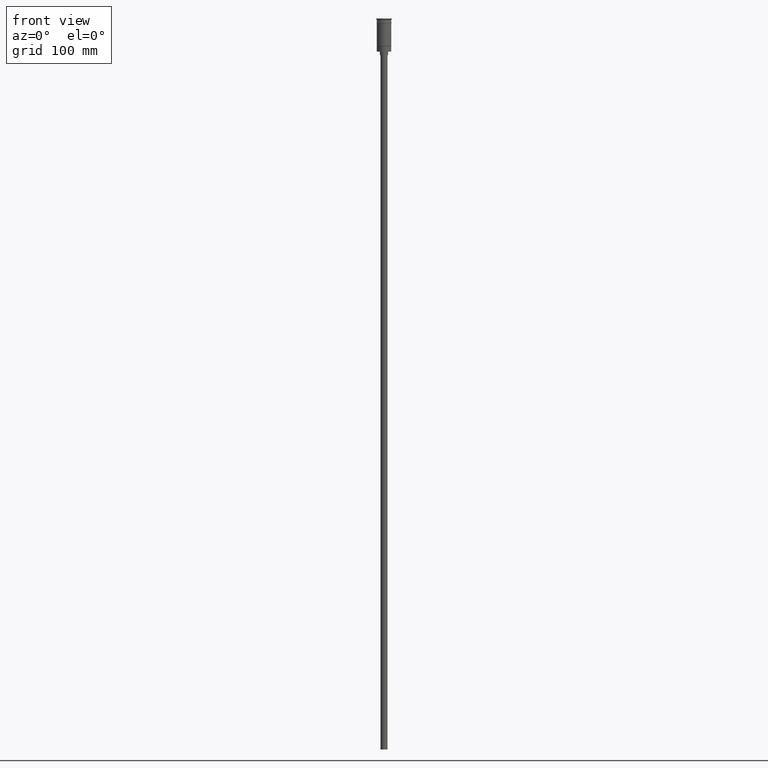
[diagram: clean part render]
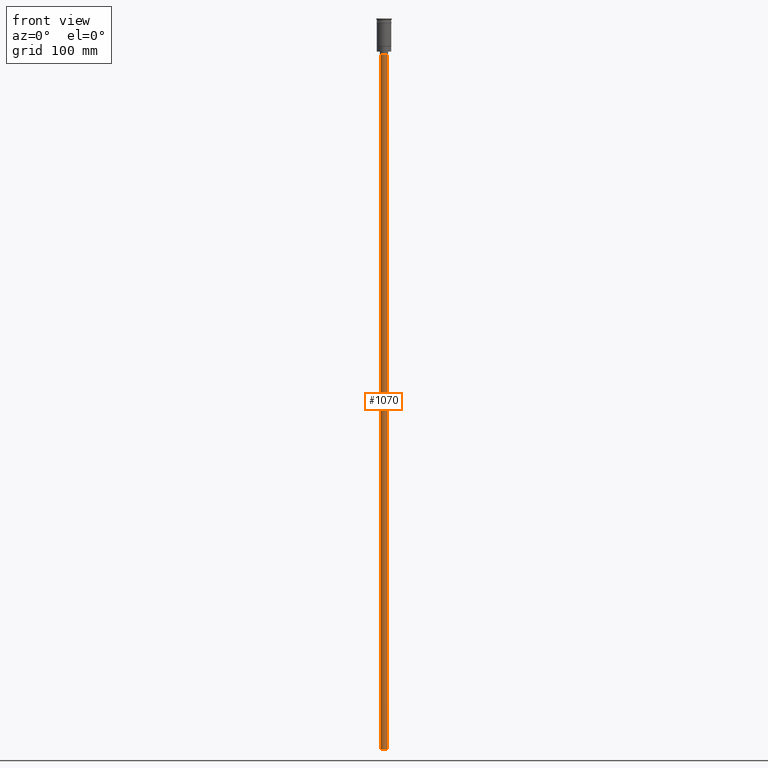
[diagram: same view with one face highlighted and labeled with its STEP entity id]
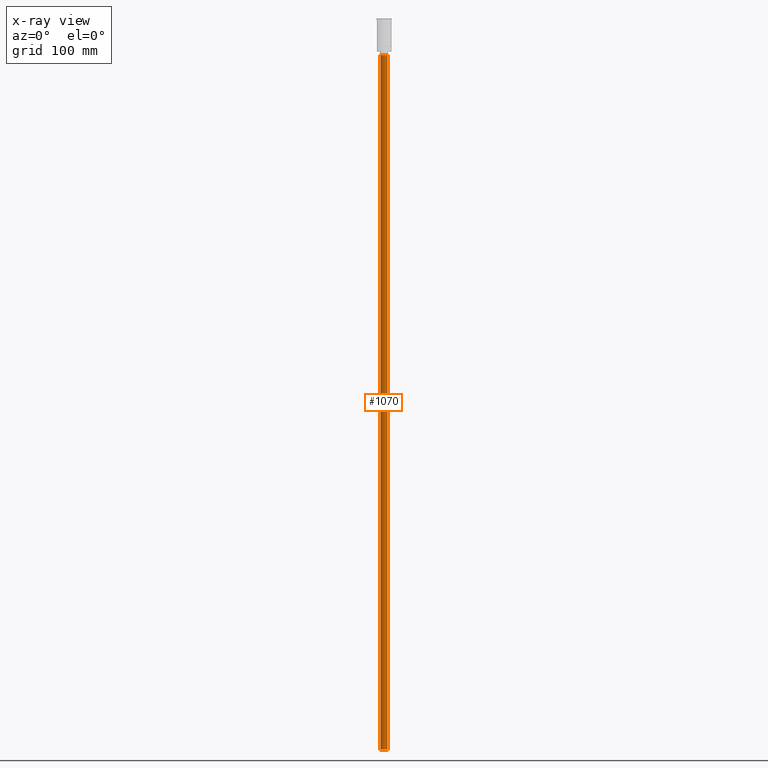
[diagram: x-ray of the same camera — body ghosted, the highlighted face saturated]
A machine part, front view. The second image highlights one B-rep face of the part: STEP entity #1070.
The next image is the same camera in x-ray: the body ghosted, the highlighted face saturated — about 0% of this face is hidden behind the body in this view.
In plain terms, the highlighted cylindrical surface (edge-blend (fillet) strip) has radius 3 mm, axis along (-0, -0, 1).
Its self-contained STEP definition (entity closure, byte-faithful):
#63 = LINE ( 'NONE', #798, #907 ) ;
#90 = EDGE_CURVE ( 'NONE', #103, #1467, #173, .T. ) ;
#103 = VERTEX_POINT ( 'NONE', #1169 ) ;
#108 = CIRCLE ( 'NONE', #883, 3.000000000000000444 ) ;
#153 = DIRECTION ( 'NONE',  ( 0.000000000000000000, 0.000000000000000000, -1.000000000000000000 ) ) ;
#173 = LINE ( 'NONE', #520, #628 ) ;
#225 = DIRECTION ( 'NONE',  ( -1.000000000000000000, 0.000000000000000000, 0.000000000000000000 ) ) ;
#260 = EDGE_LOOP ( 'NONE', ( #1182, #312, #581, #537 ) ) ;
#274 = CARTESIAN_POINT ( 'NONE',  ( 0.000000000000000000, 0.000000000000000000, -628.5000000000000000 ) ) ;
#287 = DIRECTION ( 'NONE',  ( -0.000000000000000000, -0.000000000000000000, 1.000000000000000000 ) ) ;
#312 = ORIENTED_EDGE ( 'NONE', *, *, #1311, .F. ) ;
#431 = CARTESIAN_POINT ( 'NONE',  ( -3.000000000000000444, 3.673940397442060361E-16, -31.50000000000000000 ) ) ;
#483 = CARTESIAN_POINT ( 'NONE',  ( 3.000000000000000444, 0.000000000000000000, -628.5000000000000000 ) ) ;
#520 = CARTESIAN_POINT ( 'NONE',  ( -3.000000000000000444, 3.673940397442060361E-16, -628.5000000000000000 ) ) ;
#537 = ORIENTED_EDGE ( 'NONE', *, *, #1320, .T. ) ;
#573 = AXIS2_PLACEMENT_3D ( 'NONE', #1387, #153, #1266 ) ;
#581 = ORIENTED_EDGE ( 'NONE', *, *, #1499, .T. ) ;
#628 = VECTOR ( 'NONE', #1419, 1000.000000000000000 ) ;
#645 = DIRECTION ( 'NONE',  ( -0.000000000000000000, -0.000000000000000000, 1.000000000000000000 ) ) ;
#798 = CARTESIAN_POINT ( 'NONE',  ( 3.000000000000000444, 0.000000000000000000, -628.5000000000000000 ) ) ;
#883 = AXIS2_PLACEMENT_3D ( 'NONE', #937, #1440, #225 ) ;
#893 = CARTESIAN_POINT ( 'NONE',  ( 3.000000000000000444, 0.000000000000000000, -31.50000000000000000 ) ) ;
#898 = CYLINDRICAL_SURFACE ( 'NONE', #1130, 3.000000000000000444 ) ;
#907 = VECTOR ( 'NONE', #287, 1000.000000000000000 ) ;
#937 = CARTESIAN_POINT ( 'NONE',  ( 0.000000000000000000, 0.000000000000000000, -628.5000000000000000 ) ) ;
#1070 = ADVANCED_FACE ( 'NONE', ( #1239 ), #898, .T. ) ;
#1130 = AXIS2_PLACEMENT_3D ( 'NONE', #274, #645, #1265 ) ;
#1169 = CARTESIAN_POINT ( 'NONE',  ( -3.000000000000000444, 3.673940397442060361E-16, -628.5000000000000000 ) ) ;
#1182 = ORIENTED_EDGE ( 'NONE', *, *, #90, .F. ) ;
#1239 = FACE_OUTER_BOUND ( 'NONE', #260, .T. ) ;
#1265 = DIRECTION ( 'NONE',  ( 1.000000000000000000, 0.000000000000000000, 0.000000000000000000 ) ) ;
#1266 = DIRECTION ( 'NONE',  ( -1.000000000000000000, 0.000000000000000000, 0.000000000000000000 ) ) ;
#1311 = EDGE_CURVE ( 'NONE', #1373, #103, #108, .T. ) ;
#1320 = EDGE_CURVE ( 'NONE', #1324, #1467, #1462, .T. ) ;
#1324 = VERTEX_POINT ( 'NONE', #893 ) ;
#1373 = VERTEX_POINT ( 'NONE', #483 ) ;
#1387 = CARTESIAN_POINT ( 'NONE',  ( 0.000000000000000000, 0.000000000000000000, -31.50000000000000000 ) ) ;
#1419 = DIRECTION ( 'NONE',  ( -0.000000000000000000, -0.000000000000000000, 1.000000000000000000 ) ) ;
#1440 = DIRECTION ( 'NONE',  ( 0.000000000000000000, 0.000000000000000000, -1.000000000000000000 ) ) ;
#1462 = CIRCLE ( 'NONE', #573, 3.000000000000000444 ) ;
#1467 = VERTEX_POINT ( 'NONE', #431 ) ;
#1499 = EDGE_CURVE ( 'NONE', #1373, #1324, #63, .T. ) ;